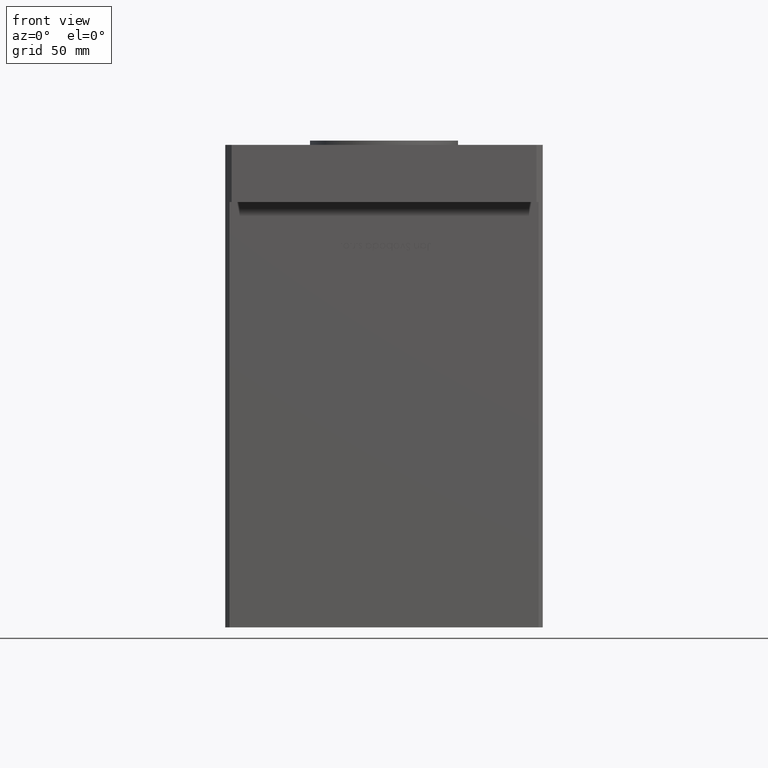
[diagram: clean part render]
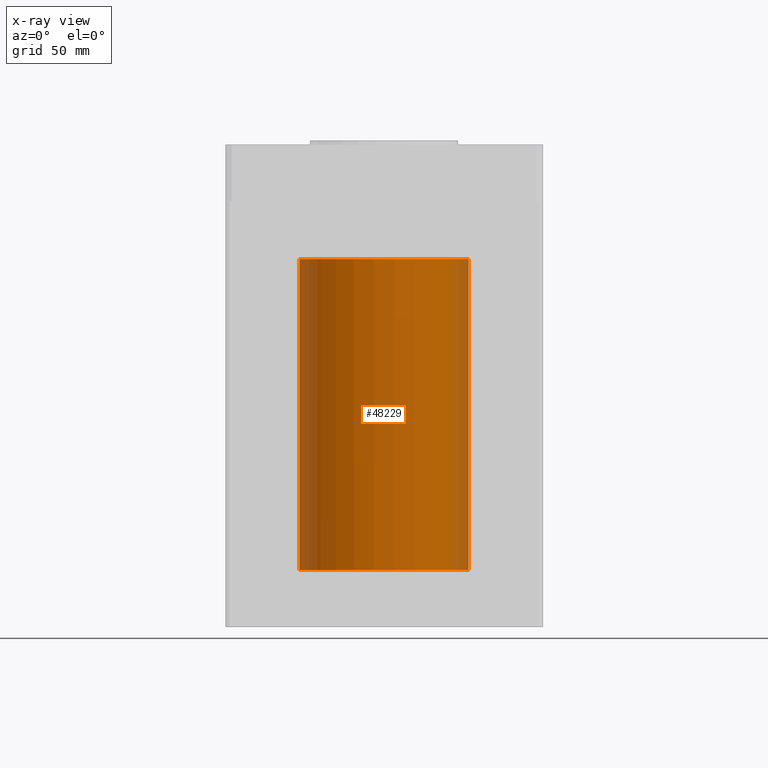
[diagram: x-ray — body ghosted, one internal face saturated and labeled with its STEP entity id]
A machine part, front view, then the same camera in x-ray: the body is ghosted and one INTERNAL B-rep face — a face not visible from any outside direction — is saturated and labeled: STEP entity #48229.
In plain terms, the highlighted cylindrical surface (partial cylindrical patch) has radius 40 mm, axis along (-0, -0, -1).
Its self-contained STEP definition (entity closure, byte-faithful):
#188 = EDGE_CURVE ( 'NONE', #43428, #35422, #10896, .T. ) ;
#355 = VERTEX_POINT ( 'NONE', #41416 ) ;
#816 = CARTESIAN_POINT ( 'NONE',  ( 0.000000000000000000, 0.000000000000000000, 147.0000000000000000 ) ) ;
#1996 = FACE_OUTER_BOUND ( 'NONE', #7148, .T. ) ;
#2502 = CIRCLE ( 'NONE', #12849, 40.00000000000000000 ) ;
#3645 = AXIS2_PLACEMENT_3D ( 'NONE', #816, #20348, #41743 ) ;
#7148 = EDGE_LOOP ( 'NONE', ( #18228, #46423, #38217, #21768 ) ) ;
#7374 = EDGE_CURVE ( 'NONE', #355, #34017, #34980, .T. ) ;
#8302 = CARTESIAN_POINT ( 'NONE',  ( 40.00000000000000000, 4.898587196589413026E-15, 0.000000000000000000 ) ) ;
#9586 = CYLINDRICAL_SURFACE ( 'NONE', #43163, 40.00000000000000000 ) ;
#10896 = LINE ( 'NONE', #27436, #16567 ) ;
#12849 = AXIS2_PLACEMENT_3D ( 'NONE', #50165, #25764, #24960 ) ;
#13146 = CIRCLE ( 'NONE', #3645, 40.00000000000000000 ) ;
#16567 = VECTOR ( 'NONE', #43956, 1000.000000000000000 ) ;
#17984 = CARTESIAN_POINT ( 'NONE',  ( 0.000000000000000000, 0.000000000000000000, 147.0000000000000000 ) ) ;
#18228 = ORIENTED_EDGE ( 'NONE', *, *, #18384, .T. ) ;
#18384 = EDGE_CURVE ( 'NONE', #355, #43428, #13146, .T. ) ;
#20013 = CARTESIAN_POINT ( 'NONE',  ( -40.00000000000000000, 0.000000000000000000, 0.000000000000000000 ) ) ;
#20348 = DIRECTION ( 'NONE',  ( -0.000000000000000000, 0.000000000000000000, 1.000000000000000000 ) ) ;
#21516 = DIRECTION ( 'NONE',  ( -0.000000000000000000, -0.000000000000000000, -1.000000000000000000 ) ) ;
#21768 = ORIENTED_EDGE ( 'NONE', *, *, #7374, .F. ) ;
#23312 = DIRECTION ( 'NONE',  ( -0.000000000000000000, -0.000000000000000000, -1.000000000000000000 ) ) ;
#24960 = DIRECTION ( 'NONE',  ( 1.000000000000000000, 0.000000000000000000, 0.000000000000000000 ) ) ;
#25764 = DIRECTION ( 'NONE',  ( -0.000000000000000000, 0.000000000000000000, 1.000000000000000000 ) ) ;
#27436 = CARTESIAN_POINT ( 'NONE',  ( 40.00000000000000000, 4.898587196589413026E-15, 147.0000000000000000 ) ) ;
#34017 = VERTEX_POINT ( 'NONE', #20013 ) ;
#34980 = LINE ( 'NONE', #51509, #37452 ) ;
#35422 = VERTEX_POINT ( 'NONE', #8302 ) ;
#37452 = VECTOR ( 'NONE', #23312, 1000.000000000000000 ) ;
#38217 = ORIENTED_EDGE ( 'NONE', *, *, #42112, .F. ) ;
#38577 = DIRECTION ( 'NONE',  ( -1.000000000000000000, 0.000000000000000000, 0.000000000000000000 ) ) ;
#41416 = CARTESIAN_POINT ( 'NONE',  ( -40.00000000000000000, 0.000000000000000000, 147.0000000000000000 ) ) ;
#41743 = DIRECTION ( 'NONE',  ( 1.000000000000000000, 0.000000000000000000, 0.000000000000000000 ) ) ;
#42112 = EDGE_CURVE ( 'NONE', #34017, #35422, #2502, .T. ) ;
#43163 = AXIS2_PLACEMENT_3D ( 'NONE', #17984, #21516, #38577 ) ;
#43428 = VERTEX_POINT ( 'NONE', #53301 ) ;
#43956 = DIRECTION ( 'NONE',  ( -0.000000000000000000, -0.000000000000000000, -1.000000000000000000 ) ) ;
#46423 = ORIENTED_EDGE ( 'NONE', *, *, #188, .T. ) ;
#48229 = ADVANCED_FACE ( 'NONE', ( #1996 ), #9586, .F. ) ;
#50165 = CARTESIAN_POINT ( 'NONE',  ( 0.000000000000000000, 0.000000000000000000, 0.000000000000000000 ) ) ;
#51509 = CARTESIAN_POINT ( 'NONE',  ( -40.00000000000000000, 0.000000000000000000, 147.0000000000000000 ) ) ;
#53301 = CARTESIAN_POINT ( 'NONE',  ( 40.00000000000000000, 4.898587196589413026E-15, 147.0000000000000000 ) ) ;